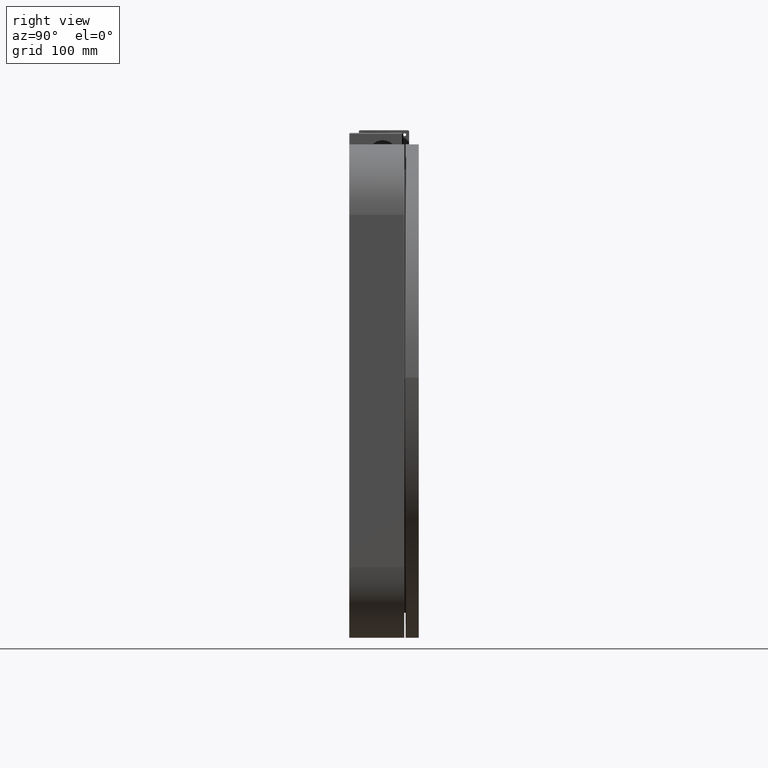
[diagram: clean part render]
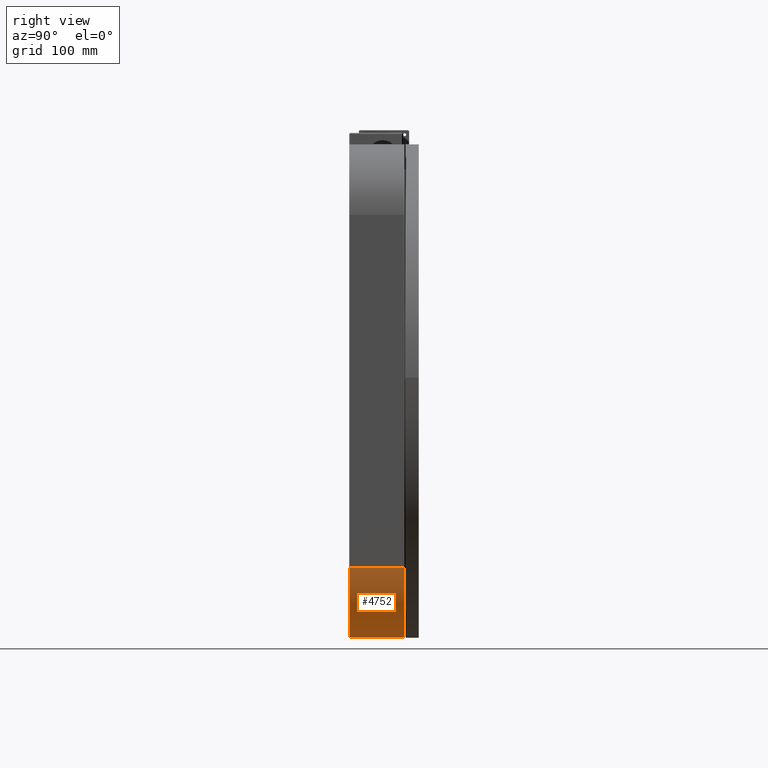
[diagram: same view with one face highlighted and labeled with its STEP entity id]
A machine part, right view. The second image highlights one B-rep face of the part: STEP entity #4752.
In plain terms, the highlighted cylindrical surface (partial cylindrical patch) has radius 80 mm, axis along (0, -1, 0).
Its self-contained STEP definition (entity closure, byte-faithful):
#106 = EDGE_CURVE ( 'NONE', #591, #10550, #4889, .T. ) ;
#122 = CARTESIAN_POINT ( 'NONE',  ( 358.0000000000001100, 62.49999999999828000, -492.0000000000002800 ) ) ;
#376 = VERTEX_POINT ( 'NONE', #27738 ) ;
#591 = VERTEX_POINT ( 'NONE', #14695 ) ;
#2260 = EDGE_CURVE ( 'NONE', #376, #25025, #19732, .T. ) ;
#3447 = ORIENTED_EDGE ( 'NONE', *, *, #16374, .T. ) ;
#4193 = DIRECTION ( 'NONE',  ( 0.0000000000000000000, -1.000000000000000000, 3.491481338843133400E-015 ) ) ;
#4534 = DIRECTION ( 'NONE',  ( -1.000000000000000000, 0.0000000000000000000, 0.0000000000000000000 ) ) ;
#4752 = ADVANCED_FACE ( 'NONE', ( #29985 ), #16154, .T. ) ;
#4889 = CIRCLE ( 'NONE', #12726, 80.00000000000001400 ) ;
#7198 = AXIS2_PLACEMENT_3D ( 'NONE', #122, #13251, #16241 ) ;
#8245 = DIRECTION ( 'NONE',  ( -0.0000000000000000000, 1.000000000000000000, -3.491481338843133400E-015 ) ) ;
#8423 = EDGE_LOOP ( 'NONE', ( #30914, #3447, #20631, #30118 ) ) ;
#8947 = CARTESIAN_POINT ( 'NONE',  ( 358.0000000000001100, 62.49999999999800300, -572.0000000000003400 ) ) ;
#10550 = VERTEX_POINT ( 'NONE', #15190 ) ;
#10785 = CARTESIAN_POINT ( 'NONE',  ( 438.0000000000001100, 62.49999999999828000, -492.0000000000002800 ) ) ;
#12726 = AXIS2_PLACEMENT_3D ( 'NONE', #21039, #8245, #26488 ) ;
#13251 = DIRECTION ( 'NONE',  ( 0.0000000000000000000, -1.000000000000000000, 3.491481338843133400E-015 ) ) ;
#14198 = DIRECTION ( 'NONE',  ( -0.0000000000000000000, 1.000000000000000000, -3.491481338843133400E-015 ) ) ;
#14695 = CARTESIAN_POINT ( 'NONE',  ( 438.0000000000001700, -1.665334536937734800E-012, -492.0000000000000600 ) ) ;
#15190 = CARTESIAN_POINT ( 'NONE',  ( 358.0000000000001100, -1.998401444325281800E-012, -572.0000000000001100 ) ) ;
#16154 = CYLINDRICAL_SURFACE ( 'NONE', #7198, 80.00000000000001400 ) ;
#16241 = DIRECTION ( 'NONE',  ( -1.000000000000000000, 0.0000000000000000000, 0.0000000000000000000 ) ) ;
#16374 = EDGE_CURVE ( 'NONE', #10550, #376, #18873, .T. ) ;
#18525 = CARTESIAN_POINT ( 'NONE',  ( 438.0000000000001100, 62.49999999999828000, -492.0000000000002800 ) ) ;
#18873 = LINE ( 'NONE', #8947, #26187 ) ;
#19732 = CIRCLE ( 'NONE', #22784, 80.00000000000001400 ) ;
#20631 = ORIENTED_EDGE ( 'NONE', *, *, #2260, .T. ) ;
#21039 = CARTESIAN_POINT ( 'NONE',  ( 358.0000000000001100, -1.665334536937734800E-012, -492.0000000000000600 ) ) ;
#22784 = AXIS2_PLACEMENT_3D ( 'NONE', #33229, #4193, #4534 ) ;
#23731 = DIRECTION ( 'NONE',  ( 0.0000000000000000000, -1.000000000000000000, 3.491481338843133400E-015 ) ) ;
#24631 = LINE ( 'NONE', #10785, #29482 ) ;
#25025 = VERTEX_POINT ( 'NONE', #18525 ) ;
#26187 = VECTOR ( 'NONE', #14198, 1000.000000000000000 ) ;
#26488 = DIRECTION ( 'NONE',  ( -1.000000000000000000, 0.0000000000000000000, 0.0000000000000000000 ) ) ;
#27738 = CARTESIAN_POINT ( 'NONE',  ( 358.0000000000001100, 62.49999999999800300, -572.0000000000003400 ) ) ;
#28892 = EDGE_CURVE ( 'NONE', #25025, #591, #24631, .T. ) ;
#29482 = VECTOR ( 'NONE', #23731, 1000.000000000000000 ) ;
#29985 = FACE_OUTER_BOUND ( 'NONE', #8423, .T. ) ;
#30118 = ORIENTED_EDGE ( 'NONE', *, *, #28892, .T. ) ;
#30914 = ORIENTED_EDGE ( 'NONE', *, *, #106, .T. ) ;
#33229 = CARTESIAN_POINT ( 'NONE',  ( 358.0000000000001100, 62.49999999999828000, -492.0000000000002800 ) ) ;